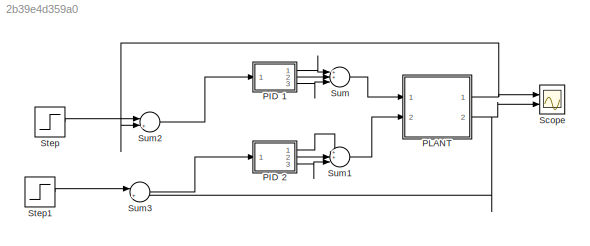
MODEL slx_2b39e4d359a0
KIND model
CONFIG AbsTol = auto
CONFIG EnableMultiTasking = off
CONFIG FixedStep = .01
CONFIG MaxStep = auto
CONFIG MinStep = auto
CONFIG RelTol = 1e-3
CONFIG SampleTimeConstraint = Unconstrained
CONFIG Solver = ode2
CONFIG SolverName = ode2
CONFIG StartTime = 0.0
CONFIG StopTime = 10
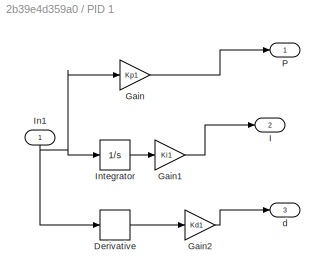
BLOCK [SubSystem] PID 1
  Ports = [1, 3]
  RequestExecContextInheritance = off
  Variant = off
BLOCK [Derivative] PID 1/Derivative
  CoefficientInTFapproximation = 0
BLOCK [Gain] PID 1/Gain
  Gain = Kp1
  OutDataTypeStr = Inherit: Inherit via internal rule
  ParamDataTypeStr = Inherit: Inherit via internal rule
  SaturateOnIntegerOverflow = off
BLOCK [Gain] PID 1/Gain1
  Gain = Ki1
  OutDataTypeStr = Inherit: Inherit via internal rule
  ParamDataTypeStr = Inherit: Inherit via internal rule
  SaturateOnIntegerOverflow = off
BLOCK [Gain] PID 1/Gain2
  Gain = Kd1
  OutDataTypeStr = Inherit: Inherit via internal rule
  ParamDataTypeStr = Inherit: Inherit via internal rule
  SaturateOnIntegerOverflow = off
BLOCK [Outport] PID 1/I
  IconDisplay = Port number
  Port = 2
BLOCK [Inport] PID 1/In1 
  IconDisplay = Port number
BLOCK [Integrator] PID 1/Integrator
  Ports = [1, 1]
BLOCK [Outport] PID 1/P
  IconDisplay = Port number
BLOCK [Outport] PID 1/d
  IconDisplay = Port number
  Port = 3
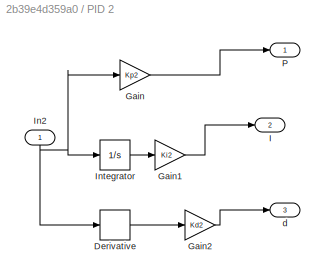
BLOCK [SubSystem] PID 2
  Ports = [1, 3]
  RequestExecContextInheritance = off
  Variant = off
BLOCK [Derivative] PID 2/Derivative
  CoefficientInTFapproximation = 0
BLOCK [Gain] PID 2/Gain
  Gain = Kp2
  OutDataTypeStr = Inherit: Inherit via internal rule
  ParamDataTypeStr = Inherit: Inherit via internal rule
  SaturateOnIntegerOverflow = off
BLOCK [Gain] PID 2/Gain1
  Gain = Ki2
  OutDataTypeStr = Inherit: Inherit via internal rule
  ParamDataTypeStr = Inherit: Inherit via internal rule
  SaturateOnIntegerOverflow = off
BLOCK [Gain] PID 2/Gain2
  Gain = Kd2
  OutDataTypeStr = Inherit: Inherit via internal rule
  ParamDataTypeStr = Inherit: Inherit via internal rule
  SaturateOnIntegerOverflow = off
BLOCK [Outport] PID 2/I
  IconDisplay = Port number
  Port = 2
BLOCK [Inport] PID 2/In2 
  IconDisplay = Port number
BLOCK [Integrator] PID 2/Integrator
  Ports = [1, 1]
BLOCK [Outport] PID 2/P
  IconDisplay = Port number
BLOCK [Outport] PID 2/d
  IconDisplay = Port number
  Port = 3
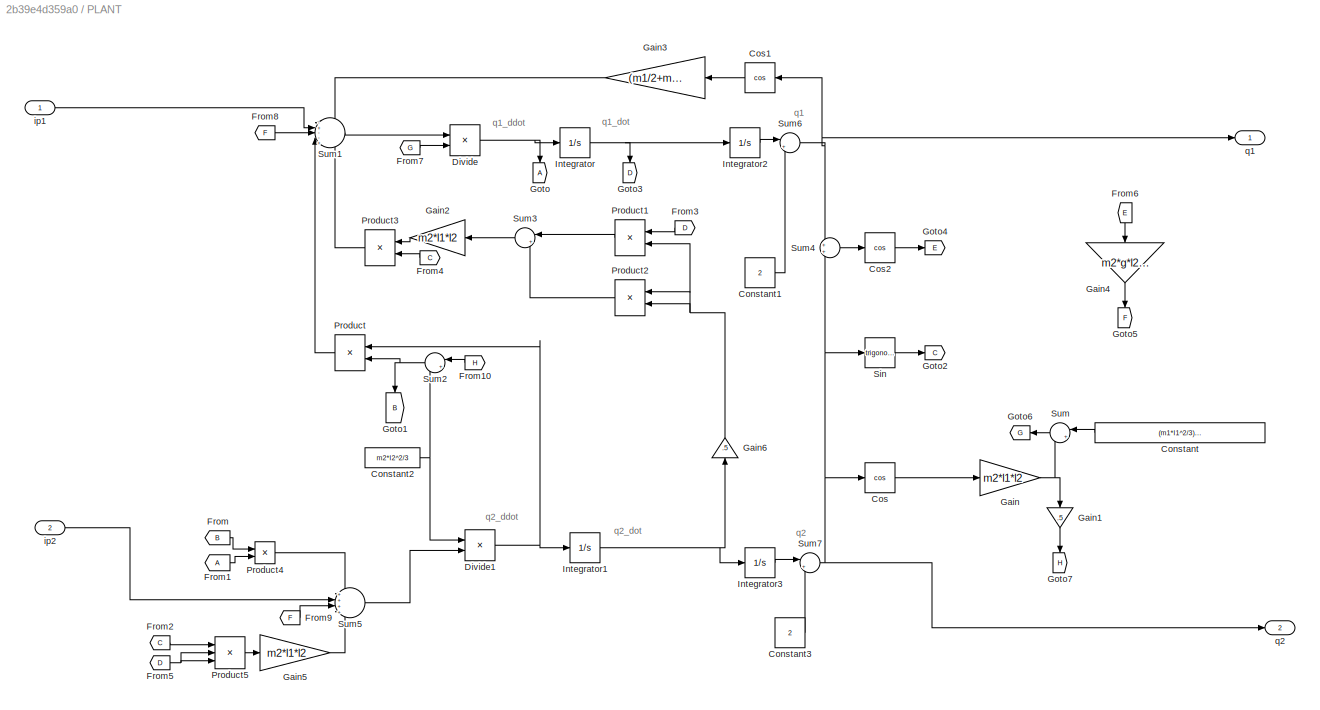
BLOCK [SubSystem] PLANT
  Ports = [2, 2]
  RequestExecContextInheritance = off
  Variant = off
BLOCK [Constant] PLANT/Constant
  Value = (m1*l1^2/3)+(m2*l2^2/3)+(m2*l1^2)
BLOCK [Constant] PLANT/Constant1
  Value = 2
BLOCK [Constant] PLANT/Constant2
  Value = m2*l2^2/3
BLOCK [Constant] PLANT/Constant3
  Value = 2
BLOCK [Trigonometry] PLANT/Cos
  Operator = cos
  Ports = [1, 1]
BLOCK [Trigonometry] PLANT/Cos1
  Operator = cos
  Ports = [1, 1]
BLOCK [Trigonometry] PLANT/Cos2
  Operator = cos
  Ports = [1, 1]
BLOCK [Product] PLANT/Divide
  InputSameDT = off
  Inputs = */
  OutDataTypeStr = Inherit: Inherit via internal rule
  Ports = [2, 1]
  RndMeth = Floor
  SaturateOnIntegerOverflow = off
BLOCK [Product] PLANT/Divide1
  InputSameDT = off
  Inputs = /*
  OutDataTypeStr = Inherit: Inherit via internal rule
  Ports = [2, 1]
  RndMeth = Floor
  SaturateOnIntegerOverflow = off
BLOCK [From] PLANT/From
  GotoTag = B
BLOCK [From] PLANT/From1
BLOCK [From] PLANT/From10
  GotoTag = H
BLOCK [From] PLANT/From2
  GotoTag = C
BLOCK [From] PLANT/From3
  GotoTag = D
BLOCK [From] PLANT/From4
  GotoTag = C
BLOCK [From] PLANT/From5
  GotoTag = D
BLOCK [From] PLANT/From6
  GotoTag = E
BLOCK [From] PLANT/From7
  GotoTag = G
BLOCK [From] PLANT/From8
  GotoTag = F
BLOCK [From] PLANT/From9
  GotoTag = F
BLOCK [Gain] PLANT/Gain
  Gain = m2*l1*l2
  OutDataTypeStr = Inherit: Inherit via internal rule
  ParamDataTypeStr = Inherit: Inherit via internal rule
  SaturateOnIntegerOverflow = off
BLOCK [Gain] PLANT/Gain1
  Gain = .5
  OutDataTypeStr = Inherit: Inherit via internal rule
  ParamDataTypeStr = Inherit: Inherit via internal rule
  SaturateOnIntegerOverflow = off
BLOCK [Gain] PLANT/Gain2
  Gain = m2*l1*l2
  OutDataTypeStr = Inherit: Inherit via internal rule
  ParamDataTypeStr = Inherit: Inherit via internal rule
  SaturateOnIntegerOverflow = off
BLOCK [Gain] PLANT/Gain3
  Gain = (m1/2+m2)*l1*g
  OutDataTypeStr = Inherit: Inherit via internal rule
  ParamDataTypeStr = Inherit: Inherit via internal rule
  SaturateOnIntegerOverflow = off
BLOCK [Gain] PLANT/Gain4
  Gain = m2*g*l2/2
  OutDataTypeStr = Inherit: Inherit via internal rule
  ParamDataTypeStr = Inherit: Inherit via internal rule
  SaturateOnIntegerOverflow = off
BLOCK [Gain] PLANT/Gain5
  Gain = m2*l1*l2
  OutDataTypeStr = Inherit: Inherit via internal rule
  ParamDataTypeStr = Inherit: Inherit via internal rule
  SaturateOnIntegerOverflow = off
BLOCK [Gain] PLANT/Gain6
  Gain = .5
  OutDataTypeStr = Inherit: Inherit via internal rule
  ParamDataTypeStr = Inherit: Inherit via internal rule
  SaturateOnIntegerOverflow = off
BLOCK [Goto] PLANT/Goto
BLOCK [Goto] PLANT/Goto1
  GotoTag = B
BLOCK [Goto] PLANT/Goto2
  GotoTag = C
BLOCK [Goto] PLANT/Goto3
  GotoTag = D
BLOCK [Goto] PLANT/Goto4
  GotoTag = E
BLOCK [Goto] PLANT/Goto5
  GotoTag = F
BLOCK [Goto] PLANT/Goto6
  GotoTag = G
BLOCK [Goto] PLANT/Goto7
  GotoTag = H
BLOCK [Integrator] PLANT/Integrator
  Ports = [1, 1]
BLOCK [Integrator] PLANT/Integrator1
  Ports = [1, 1]
BLOCK [Integrator] PLANT/Integrator2
  Ports = [1, 1]
BLOCK [Integrator] PLANT/Integrator3
  Ports = [1, 1]
BLOCK [Product] PLANT/Product
  InputSameDT = off
  OutDataTypeStr = Inherit: Inherit via internal rule
  Ports = [2, 1]
  RndMeth = Floor
  SaturateOnIntegerOverflow = off
BLOCK [Product] PLANT/Product1
  InputSameDT = off
  OutDataTypeStr = Inherit: Inherit via internal rule
  Ports = [2, 1]
  RndMeth = Floor
  SaturateOnIntegerOverflow = off
BLOCK [Product] PLANT/Product2
  InputSameDT = off
  OutDataTypeStr = Inherit: Inherit via internal rule
  Ports = [2, 1]
  RndMeth = Floor
  SaturateOnIntegerOverflow = off
BLOCK [Product] PLANT/Product3
  InputSameDT = off
  OutDataTypeStr = Inherit: Inherit via internal rule
  Ports = [2, 1]
  RndMeth = Floor
  SaturateOnIntegerOverflow = off
BLOCK [Product] PLANT/Product4
  InputSameDT = off
  OutDataTypeStr = Inherit: Inherit via internal rule
  Ports = [2, 1]
  RndMeth = Floor
  SaturateOnIntegerOverflow = off
BLOCK [Product] PLANT/Product5
  InputSameDT = off
  Inputs = 3
  OutDataTypeStr = Inherit: Inherit via internal rule
  Ports = [3, 1]
  RndMeth = Floor
  SaturateOnIntegerOverflow = off
BLOCK [Trigonometry] PLANT/Sin
  Ports = [1, 1]
BLOCK [Sum] PLANT/Sum
  IconShape = round
  InputSameDT = off
  Inputs = |++
  OutDataTypeStr = Inherit: Inherit via internal rule
  Ports = [2, 1]
  SaturateOnIntegerOverflow = off
BLOCK [Sum] PLANT/Sum1
  IconShape = round
  InputSameDT = off
  Inputs = -+--+
  OutDataTypeStr = Inherit: Inherit via internal rule
  Ports = [5, 1]
  SaturateOnIntegerOverflow = off
BLOCK [Sum] PLANT/Sum2
  IconShape = round
  InputSameDT = off
  Inputs = |++
  OutDataTypeStr = Inherit: Inherit via internal rule
  Ports = [2, 1]
  SaturateOnIntegerOverflow = off
BLOCK [Sum] PLANT/Sum3
  IconShape = round
  InputSameDT = off
  Inputs = |++
  OutDataTypeStr = Inherit: Inherit via internal rule
  Ports = [2, 1]
  SaturateOnIntegerOverflow = off
BLOCK [Sum] PLANT/Sum4
  IconShape = round
  InputSameDT = off
  Inputs = 2
  OutDataTypeStr = Inherit: Inherit via internal rule
  Ports = [2, 1]
  SaturateOnIntegerOverflow = off
BLOCK [Sum] PLANT/Sum5
  IconShape = round
  InputSameDT = off
  Inputs = ++++
  OutDataTypeStr = Inherit: Inherit via internal rule
  Ports = [4, 1]
  SaturateOnIntegerOverflow = off
BLOCK [Sum] PLANT/Sum6
  IconShape = round
  InputSameDT = off
  Inputs = |++
  OutDataTypeStr = Inherit: Inherit via internal rule
  Ports = [2, 1]
  SaturateOnIntegerOverflow = off
BLOCK [Sum] PLANT/Sum7
  IconShape = round
  InputSameDT = off
  Inputs = |++
  OutDataTypeStr = Inherit: Inherit via internal rule
  Ports = [2, 1]
  SaturateOnIntegerOverflow = off
BLOCK [Inport] PLANT/ip1 
  IconDisplay = Port number
BLOCK [Inport] PLANT/ip2
  IconDisplay = Port number
  Port = 2
BLOCK [Outport] PLANT/q1 
  IconDisplay = Port number
BLOCK [Outport] PLANT/q2
  IconDisplay = Port number
  Port = 2
BLOCK [Scope] Scope
  NumInputPorts = 2
  Ports = [2]
  ScopeSpecificationString = Simulink.scopes.TimeScopeBlockCfg('CurrentConfiguration', extmgr.ConfigurationSet(extmgr.Configuration('Core','General UI',true),extmgr.Configuration('Core','Source UI',true),extmgr.Configuration('Sources','WiredSimulink',true),extmgr.Configuration('Visuals','Time Domain',true,'SerializedDisplays',{struct('MinYLimReal','1.1402','MaxYLimReal','5.90909','YLabelReal','','MinYLimMag','1.1402','MaxYLim...<+1405ch>
BLOCK [Step] Step
  SampleTime = 0
  Time = pi
  VectorParams1D = off
BLOCK [Step] Step1
  SampleTime = 0
  Time = 0
  VectorParams1D = off
BLOCK [Sum] Sum
  IconShape = round
  InputSameDT = off
  Inputs = 3
  OutDataTypeStr = Inherit: Inherit via internal rule
  Ports = [3, 1]
  SaturateOnIntegerOverflow = off
BLOCK [Sum] Sum1
  IconShape = round
  InputSameDT = off
  Inputs = 3
  OutDataTypeStr = Inherit: Inherit via internal rule
  Ports = [3, 1]
  SaturateOnIntegerOverflow = off
BLOCK [Sum] Sum2
  IconShape = round
  InputSameDT = off
  Inputs = |++
  OutDataTypeStr = Inherit: Inherit via internal rule
  Ports = [2, 1]
  SaturateOnIntegerOverflow = off
BLOCK [Sum] Sum3
  IconShape = round
  InputSameDT = off
  Inputs = |++
  OutDataTypeStr = Inherit: Inherit via internal rule
  Ports = [2, 1]
  SaturateOnIntegerOverflow = off
ANNOTATION PLANT: q1
ANNOTATION PLANT: q1_ddot
ANNOTATION PLANT: q1_dot
ANNOTATION PLANT: q2
ANNOTATION PLANT: q2_ddot
ANNOTATION PLANT: q2_dot
LINE PID 1/Derivative:1 -> PID 1/Gain2:1
LINE PID 1/Gain1:1 -> PID 1/I:1
LINE PID 1/Gain2:1 -> PID 1/d:1
LINE PID 1/Gain:1 -> PID 1/P:1
NET PID 1/In1 :1 -> PID 1/Derivative:1, PID 1/Gain:1, PID 1/Integrator:1
LINE PID 1/Integrator:1 -> PID 1/Gain1:1
LINE PID 1:1 -> Sum:1
LINE PID 1:2 -> Sum:2
LINE PID 1:3 -> Sum:3
LINE PID 2/Derivative:1 -> PID 2/Gain2:1
LINE PID 2/Gain1:1 -> PID 2/I:1
LINE PID 2/Gain2:1 -> PID 2/d:1
LINE PID 2/Gain:1 -> PID 2/P:1
NET PID 2/In2 :1 -> PID 2/Derivative:1, PID 2/Gain:1, PID 2/Integrator:1
LINE PID 2/Integrator:1 -> PID 2/Gain1:1
LINE PID 2:1 -> Sum1:1
LINE PID 2:2 -> Sum1:2
LINE PID 2:3 -> Sum1:3
LINE PLANT/Constant1:1 -> PLANT/Sum6:2
NET PLANT/Constant2:1 -> PLANT/Divide1:1, PLANT/Sum2:2
LINE PLANT/Constant3:1 -> PLANT/Sum7:2
LINE PLANT/Constant:1 -> PLANT/Sum:1
LINE PLANT/Cos1:1 -> PLANT/Gain3:1
LINE PLANT/Cos2:1 -> PLANT/Goto4:1
LINE PLANT/Cos:1 -> PLANT/Gain:1
NET PLANT/Divide1:1 -> PLANT/Integrator1:1, PLANT/Product:1
NET PLANT/Divide:1 -> PLANT/Goto:1, PLANT/Integrator:1
LINE PLANT/From10:1 -> PLANT/Sum2:1
LINE PLANT/From1:1 -> PLANT/Product4:2
LINE PLANT/From2:1 -> PLANT/Product5:1
LINE PLANT/From3:1 -> PLANT/Product1:1
LINE PLANT/From4:1 -> PLANT/Product3:2
NET PLANT/From5:1 -> PLANT/Product5:2, PLANT/Product5:3
LINE PLANT/From6:1 -> PLANT/Gain4:1
LINE PLANT/From7:1 -> PLANT/Divide:2
LINE PLANT/From8:1 -> PLANT/Sum1:3
LINE PLANT/From9:1 -> PLANT/Sum5:3
LINE PLANT/From:1 -> PLANT/Product4:1
LINE PLANT/Gain1:1 -> PLANT/Goto7:1
LINE PLANT/Gain2:1 -> PLANT/Product3:1
LINE PLANT/Gain3:1 -> PLANT/Sum1:1
LINE PLANT/Gain4:1 -> PLANT/Goto5:1
LINE PLANT/Gain5:1 -> PLANT/Sum5:4
NET PLANT/Gain6:1 -> PLANT/Product1:2, PLANT/Product2:1, PLANT/Product2:2
NET PLANT/Gain:1 -> PLANT/Gain1:1, PLANT/Sum:2
NET PLANT/Integrator1:1 -> PLANT/Gain6:1, PLANT/Integrator3:1
LINE PLANT/Integrator2:1 -> PLANT/Sum6:1
LINE PLANT/Integrator3:1 -> PLANT/Sum7:1
NET PLANT/Integrator:1 -> PLANT/Goto3:1, PLANT/Integrator2:1
LINE PLANT/Product1:1 -> PLANT/Sum3:1
LINE PLANT/Product2:1 -> PLANT/Sum3:2
LINE PLANT/Product3:1 -> PLANT/Sum1:5
LINE PLANT/Product4:1 -> PLANT/Sum5:1
LINE PLANT/Product5:1 -> PLANT/Gain5:1
LINE PLANT/Product:1 -> PLANT/Sum1:4
LINE PLANT/Sin:1 -> PLANT/Goto2:1
LINE PLANT/Sum1:1 -> PLANT/Divide:1
NET PLANT/Sum2:1 -> PLANT/Goto1:1, PLANT/Product:2
LINE PLANT/Sum3:1 -> PLANT/Gain2:1
LINE PLANT/Sum4:1 -> PLANT/Cos2:1
LINE PLANT/Sum5:1 -> PLANT/Divide1:2
NET PLANT/Sum6:1 -> PLANT/Cos1:1, PLANT/Sum4:1, PLANT/q1 :1
NET PLANT/Sum7:1 -> PLANT/Cos:1, PLANT/Sin:1, PLANT/Sum4:2, PLANT/q2:1
LINE PLANT/Sum:1 -> PLANT/Goto6:1
LINE PLANT/ip1 :1 -> PLANT/Sum1:2
LINE PLANT/ip2:1 -> PLANT/Sum5:2
NET PLANT:1 -> Scope:1, Sum2:2
NET PLANT:2 -> Scope:2, Sum3:2
LINE Step1:1 -> Sum3:1
LINE Step:1 -> Sum2:1
LINE Sum1:1 -> PLANT:2
LINE Sum2:1 -> PID 1:1
LINE Sum3:1 -> PID 2:1
LINE Sum:1 -> PLANT:1
note: NET lines group one-source signal fan-out (src -> all destinations, sorted); 1:1 wires keep LINE
